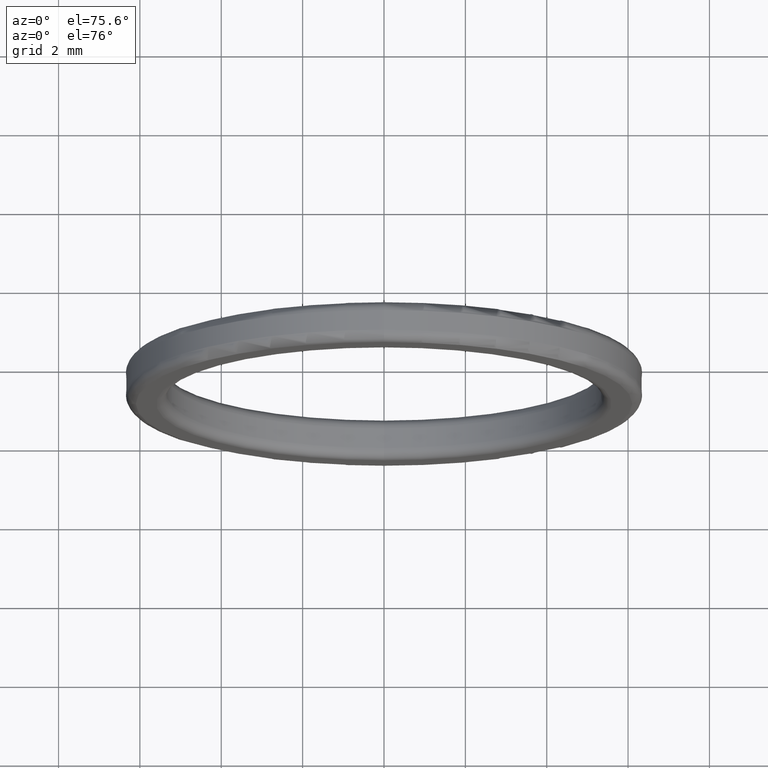
[diagram: clean part render]
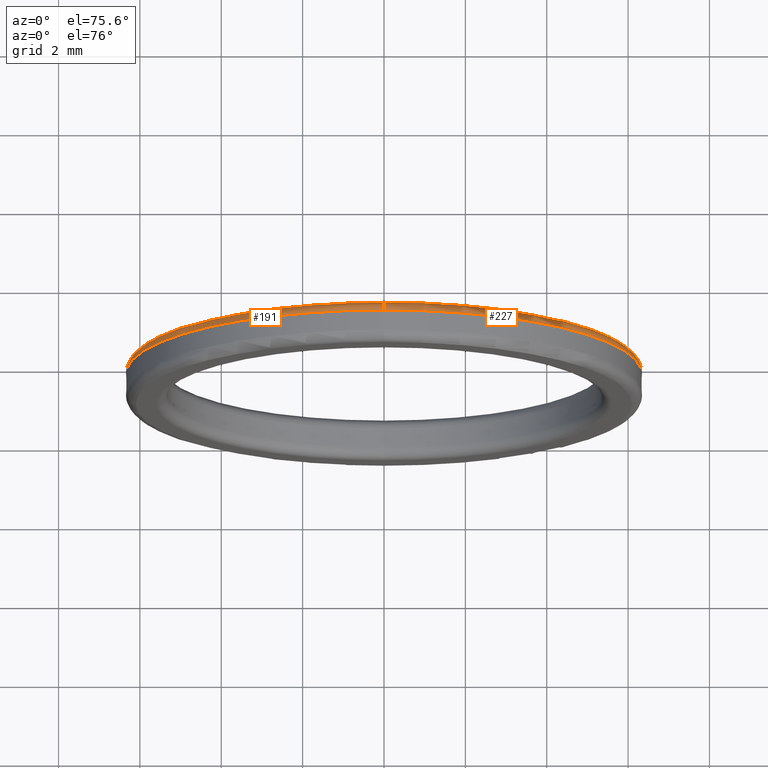
[diagram: same view with one multi-face feature highlighted, each face labeled with its STEP entity id]
A machine part, auxiliary view. The highlighted faces form ONE feature: a constant-radius fillet chain: 2 tangent blend faces with common blend radius 0.25 mm. The faces share edges in the B-rep.
Their STEP definitions:
[1] entity #227 (Torus):
#20 = CARTESIAN_POINT ( 'NONE',  ( 0.0000000000000000000, 0.2499999999999993616, 0.0000000000000000000 ) ) ;
#27 = AXIS2_PLACEMENT_3D ( 'NONE', #205, #240, #444 ) ;
#48 = DIRECTION ( 'NONE',  ( 0.0000000000000000000, -1.000000000000000000, 0.0000000000000000000 ) ) ;
#54 = CARTESIAN_POINT ( 'NONE',  ( 0.0000000000000000000, 0.2499999999999993616, -6.099999999999994316 ) ) ;
#57 = CARTESIAN_POINT ( 'NONE',  ( 0.0000000000000000000, 0.4999999999999989453, -6.099999999999994316 ) ) ;
#81 = DIRECTION ( 'NONE',  ( 0.0000000000000000000, 0.0000000000000000000, -1.000000000000000000 ) ) ;
#85 = DIRECTION ( 'NONE',  ( -0.0000000000000000000, 1.000000000000000000, -0.0000000000000000000 ) ) ;
#96 = ORIENTED_EDGE ( 'NONE', *, *, #376, .T. ) ;
#115 = CIRCLE ( 'NONE', #27, 0.2500000000000002220 ) ;
#125 = DIRECTION ( 'NONE',  ( 0.0000000000000000000, 0.0000000000000000000, 1.000000000000000000 ) ) ;
#131 = CARTESIAN_POINT ( 'NONE',  ( 0.0000000000000000000, 0.2499999999999993616, 6.349999999999994316 ) ) ;
#144 = VERTEX_POINT ( 'NONE', #131 ) ;
#147 = CIRCLE ( 'NONE', #271, 6.349999999999994316 ) ;
#149 = AXIS2_PLACEMENT_3D ( 'NONE', #164, #48, #81 ) ;
#164 = CARTESIAN_POINT ( 'NONE',  ( 0.0000000000000000000, 0.2499999999999993616, 0.0000000000000000000 ) ) ;
#171 = FACE_OUTER_BOUND ( 'NONE', #402, .T. ) ;
#205 = CARTESIAN_POINT ( 'NONE',  ( 7.470345474798847390E-16, 0.2499999999999993616, 6.099999999999994316 ) ) ;
#212 = CARTESIAN_POINT ( 'NONE',  ( 7.623426324692266325E-16, 0.4999999999999989453, 6.099999999999994316 ) ) ;
#223 = EDGE_CURVE ( 'NONE', #450, #326, #429, .T. ) ;
#227 = ADVANCED_FACE ( 'NONE', ( #171 ), #419, .T. ) ;
#239 = CIRCLE ( 'NONE', #384, 0.2500000000000002220 ) ;
#240 = DIRECTION ( 'NONE',  ( 1.000000000000000000, 0.0000000000000000000, -1.224646799147353207E-16 ) ) ;
#259 = ORIENTED_EDGE ( 'NONE', *, *, #273, .F. ) ;
#270 = DIRECTION ( 'NONE',  ( 0.0000000000000000000, -1.000000000000000000, 0.0000000000000000000 ) ) ;
#271 = AXIS2_PLACEMENT_3D ( 'NONE', #20, #270, #441 ) ;
#273 = EDGE_CURVE ( 'NONE', #326, #455, #239, .T. ) ;
#312 = EDGE_CURVE ( 'NONE', #455, #144, #147, .T. ) ;
#313 = CARTESIAN_POINT ( 'NONE',  ( 7.776507174585686247E-16, 0.2499999999999993616, -6.349999999999994316 ) ) ;
#325 = CARTESIAN_POINT ( 'NONE',  ( 0.0000000000000000000, 0.4999999999999989453, 0.0000000000000000000 ) ) ;
#326 = VERTEX_POINT ( 'NONE', #57 ) ;
#330 = DIRECTION ( 'NONE',  ( 0.0000000000000000000, 0.0000000000000000000, -1.000000000000000000 ) ) ;
#376 = EDGE_CURVE ( 'NONE', #450, #144, #115, .T. ) ;
#380 = ORIENTED_EDGE ( 'NONE', *, *, #223, .F. ) ;
#384 = AXIS2_PLACEMENT_3D ( 'NONE', #54, #434, #125 ) ;
#402 = EDGE_LOOP ( 'NONE', ( #380, #96, #436, #259 ) ) ;
#408 = AXIS2_PLACEMENT_3D ( 'NONE', #325, #85, #330 ) ;
#419 = TOROIDAL_SURFACE ( 'NONE', #149, 6.099999999999994316, 0.2500000000000000000 ) ;
#429 = CIRCLE ( 'NONE', #408, 6.099999999999994316 ) ;
#434 = DIRECTION ( 'NONE',  ( -1.000000000000000000, -0.0000000000000000000, -0.0000000000000000000 ) ) ;
#436 = ORIENTED_EDGE ( 'NONE', *, *, #312, .F. ) ;
#441 = DIRECTION ( 'NONE',  ( 0.0000000000000000000, 0.0000000000000000000, -1.000000000000000000 ) ) ;
#444 = DIRECTION ( 'NONE',  ( -1.224646799147353454E-16, 0.0000000000000000000, -1.000000000000000000 ) ) ;
#450 = VERTEX_POINT ( 'NONE', #212 ) ;
#455 = VERTEX_POINT ( 'NONE', #313 ) ;
[2] entity #191 (Torus):
#7 = CARTESIAN_POINT ( 'NONE',  ( 0.0000000000000000000, 0.2499999999999993616, 0.0000000000000000000 ) ) ;
#22 = EDGE_CURVE ( 'NONE', #144, #455, #126, .T. ) ;
#27 = AXIS2_PLACEMENT_3D ( 'NONE', #205, #240, #444 ) ;
#54 = CARTESIAN_POINT ( 'NONE',  ( 0.0000000000000000000, 0.2499999999999993616, -6.099999999999994316 ) ) ;
#57 = CARTESIAN_POINT ( 'NONE',  ( 0.0000000000000000000, 0.4999999999999989453, -6.099999999999994316 ) ) ;
#70 = TOROIDAL_SURFACE ( 'NONE', #128, 6.099999999999994316, 0.2500000000000000000 ) ;
#100 = AXIS2_PLACEMENT_3D ( 'NONE', #252, #393, #387 ) ;
#115 = CIRCLE ( 'NONE', #27, 0.2500000000000002220 ) ;
#116 = CARTESIAN_POINT ( 'NONE',  ( 0.0000000000000000000, 0.4999999999999989453, 0.0000000000000000000 ) ) ;
#125 = DIRECTION ( 'NONE',  ( 0.0000000000000000000, 0.0000000000000000000, 1.000000000000000000 ) ) ;
#126 = CIRCLE ( 'NONE', #100, 6.349999999999994316 ) ;
#127 = DIRECTION ( 'NONE',  ( 0.0000000000000000000, 0.0000000000000000000, -1.000000000000000000 ) ) ;
#128 = AXIS2_PLACEMENT_3D ( 'NONE', #7, #258, #161 ) ;
#131 = CARTESIAN_POINT ( 'NONE',  ( 0.0000000000000000000, 0.2499999999999993616, 6.349999999999994316 ) ) ;
#132 = EDGE_CURVE ( 'NONE', #326, #450, #349, .T. ) ;
#144 = VERTEX_POINT ( 'NONE', #131 ) ;
#158 = FACE_OUTER_BOUND ( 'NONE', #283, .T. ) ;
#161 = DIRECTION ( 'NONE',  ( 0.0000000000000000000, 0.0000000000000000000, -1.000000000000000000 ) ) ;
#179 = AXIS2_PLACEMENT_3D ( 'NONE', #116, #351, #127 ) ;
#191 = ADVANCED_FACE ( 'NONE', ( #158 ), #70, .T. ) ;
#205 = CARTESIAN_POINT ( 'NONE',  ( 7.470345474798847390E-16, 0.2499999999999993616, 6.099999999999994316 ) ) ;
#212 = CARTESIAN_POINT ( 'NONE',  ( 7.623426324692266325E-16, 0.4999999999999989453, 6.099999999999994316 ) ) ;
#239 = CIRCLE ( 'NONE', #384, 0.2500000000000002220 ) ;
#240 = DIRECTION ( 'NONE',  ( 1.000000000000000000, 0.0000000000000000000, -1.224646799147353207E-16 ) ) ;
#252 = CARTESIAN_POINT ( 'NONE',  ( 0.0000000000000000000, 0.2499999999999993616, 0.0000000000000000000 ) ) ;
#258 = DIRECTION ( 'NONE',  ( 0.0000000000000000000, -1.000000000000000000, 0.0000000000000000000 ) ) ;
#268 = ORIENTED_EDGE ( 'NONE', *, *, #273, .T. ) ;
#273 = EDGE_CURVE ( 'NONE', #326, #455, #239, .T. ) ;
#283 = EDGE_LOOP ( 'NONE', ( #331, #390, #268, #431 ) ) ;
#313 = CARTESIAN_POINT ( 'NONE',  ( 7.776507174585686247E-16, 0.2499999999999993616, -6.349999999999994316 ) ) ;
#326 = VERTEX_POINT ( 'NONE', #57 ) ;
#331 = ORIENTED_EDGE ( 'NONE', *, *, #376, .F. ) ;
#349 = CIRCLE ( 'NONE', #179, 6.099999999999994316 ) ;
#351 = DIRECTION ( 'NONE',  ( -0.0000000000000000000, 1.000000000000000000, -0.0000000000000000000 ) ) ;
#376 = EDGE_CURVE ( 'NONE', #450, #144, #115, .T. ) ;
#384 = AXIS2_PLACEMENT_3D ( 'NONE', #54, #434, #125 ) ;
#387 = DIRECTION ( 'NONE',  ( 0.0000000000000000000, 0.0000000000000000000, -1.000000000000000000 ) ) ;
#390 = ORIENTED_EDGE ( 'NONE', *, *, #132, .F. ) ;
#393 = DIRECTION ( 'NONE',  ( 0.0000000000000000000, -1.000000000000000000, 0.0000000000000000000 ) ) ;
#431 = ORIENTED_EDGE ( 'NONE', *, *, #22, .F. ) ;
#434 = DIRECTION ( 'NONE',  ( -1.000000000000000000, -0.0000000000000000000, -0.0000000000000000000 ) ) ;
#444 = DIRECTION ( 'NONE',  ( -1.224646799147353454E-16, 0.0000000000000000000, -1.000000000000000000 ) ) ;
#450 = VERTEX_POINT ( 'NONE', #212 ) ;
#455 = VERTEX_POINT ( 'NONE', #313 ) ;